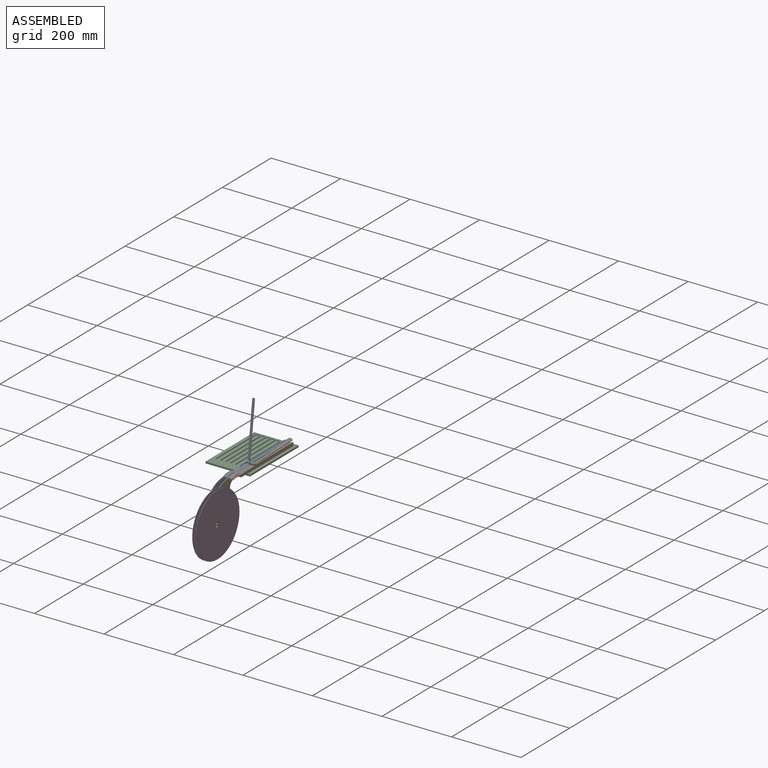
[diagram: assembled view]
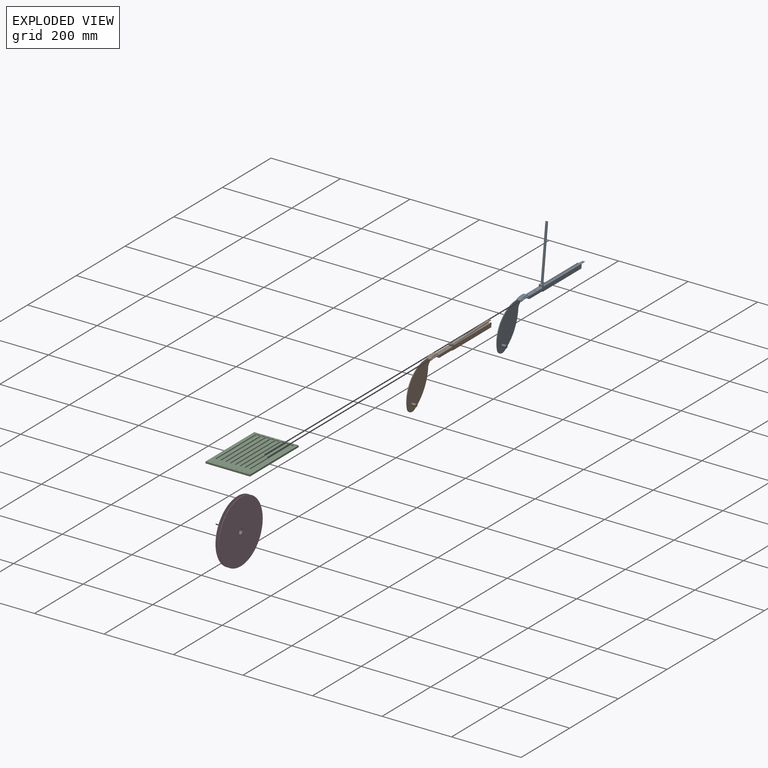
[diagram: exploded view]
GUIDED TOUR — MATED ASSEMBLY WITH SUBASSEMBLIES (Onshape document 09670830aaa709a325eec93c, AutoMate assembly 09670830aaa709a325eec93c_676e1ab209dbd482c11b53d5_d669f3113998ab0a5254547f_default)

This assembly has 26 component occurrences arranged in 4 top-level units: 2 individual components plus 2 subassemblies (S0, S1). The tour has two levels: first the top level, where each subassembly is treated as one rigid unit; then each subassembly is toured internally in its own section (nesting deeper than one subassembly level is flattened into its subassembly's section).

Components are labeled P0..P25 across the whole record; subassembly units are labeled S0..S1. A mate is a constraint between two units; its type names the relative motion it leaves free:
  FASTENED — locks the two components together rigidly (no relative motion),
  PLANAR — leaves sliding in the plane through the listed point (normal = the listed direction) and rotation about that normal free,
  REVOLUTE — leaves rotation about the listed axis free (a hinge).
Axis/direction vectors are unit vectors and 'through' points are millimeter coordinates, both in the assembly's world frame.

TOP-LEVEL MATES (between units; each subassembly's internal mates are listed in its own section)
  1. PLANAR "Planar 2": S1 <-> P3, direction (0.000, 1.000, 0.000) through (-10.76, 190.00, 11.09) mm
  2. PLANAR "Planar 7": S0 <-> P3, direction (0.000, 1.000, 0.000) through (-24.76, 190.00, 11.09) mm
  3. PLANAR "Planar 3": S1 <-> P3, direction (1.000, 0.000, 0.000) through (-8.10, 190.00, 3.00) mm
  4. PLANAR "Planar 6": S0 <-> P3, direction (1.000, 0.000, 0.000) through (-22.10, 30.00, 13.50) mm
  5. REVOLUTE "Revolute 1": S1 <-> P18, axis (1.000, 0.000, 0.000) through (-19.20, -120.00, -81.90) mm

TOP-LEVEL ASSEMBLY ORDER
  1. P3 — the base component [order verified]
  2. S0 [order verified]
  3. S1 [order verified]
  4. P18 [order verified]
Order-tag legend:
  [order verified] — this step's position reverses a verified removal order: the component was checked to insert without passing through the ones already placed.

Of the 26 component occurrences, 5 carry the full construction recipe — the FeatureScript program that regenerates the part's solid from scratch; the rest are supplied as boundary geometry only. Each toured unit is shown spotlighted twice — assembled, then exploded with a leader line back to its socket (green = recipe-attached component, orange = geometry-only, blue = subassembly unit; the rest desaturated gray).
NOTE — this tour is split across 3 documents so each fits a 32k-token context. This is document 1: the component sections continue in the remaining 2 documents, each repeating the header above.
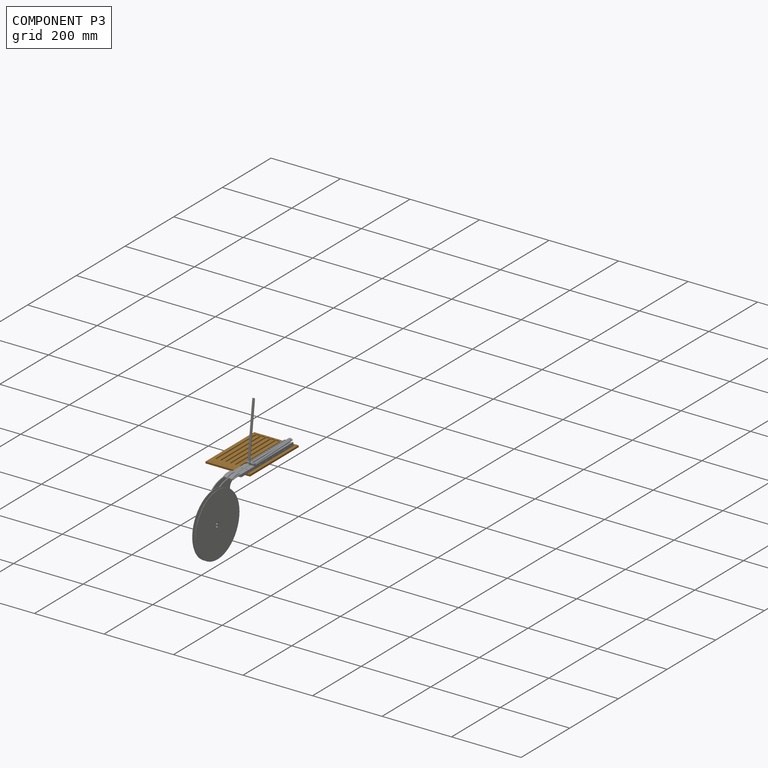
[diagram: component P3 — assembled]
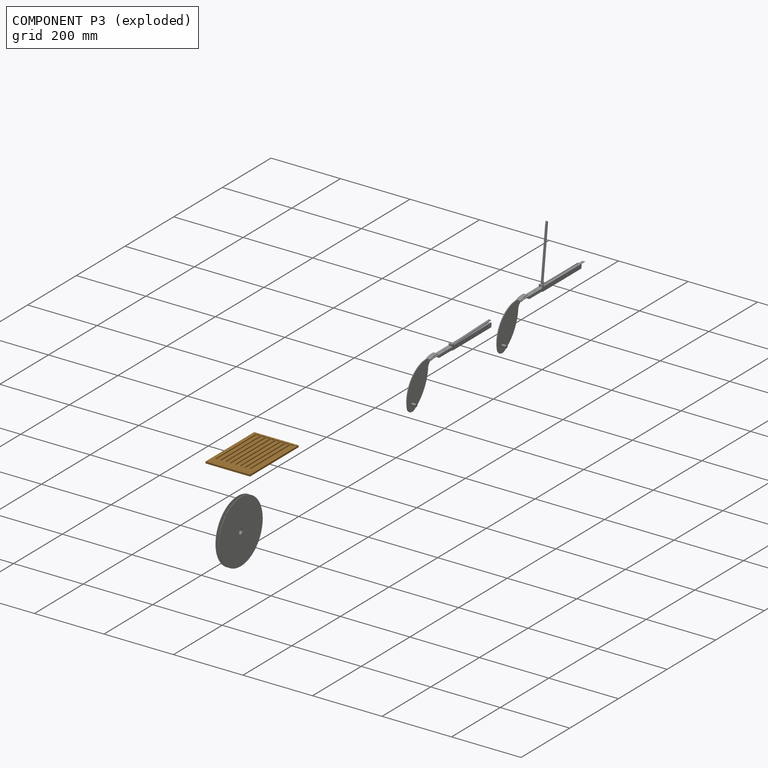
[diagram: component P3 — exploded]
COMPONENT P3 — geometry summary (no construction recipe available for this part):
  bounding box: 200.0 x 128.0 x 5.0 mm
  B-rep topology: 1 solid, 90 faces, 484 edges
  volume: 78361 mm^3 (61% of its bounding box)
Held by: PLANAR mate "Planar 2" to P1; PLANAR mate "Planar 7" to P0; PLANAR mate "Planar 3" to P1; PLANAR mate "Planar 6" to P0.
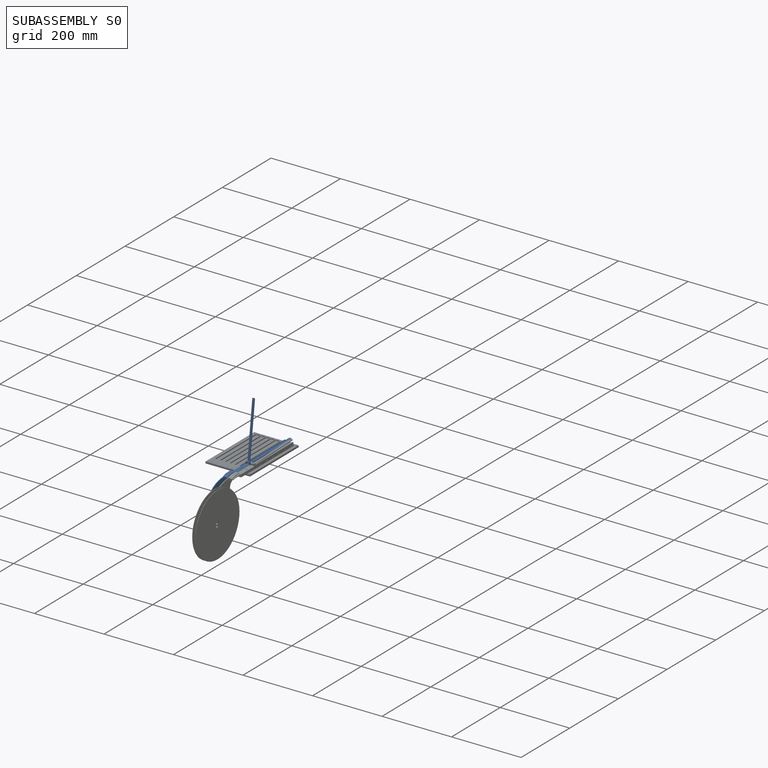
[diagram: subassembly S0 — assembled]
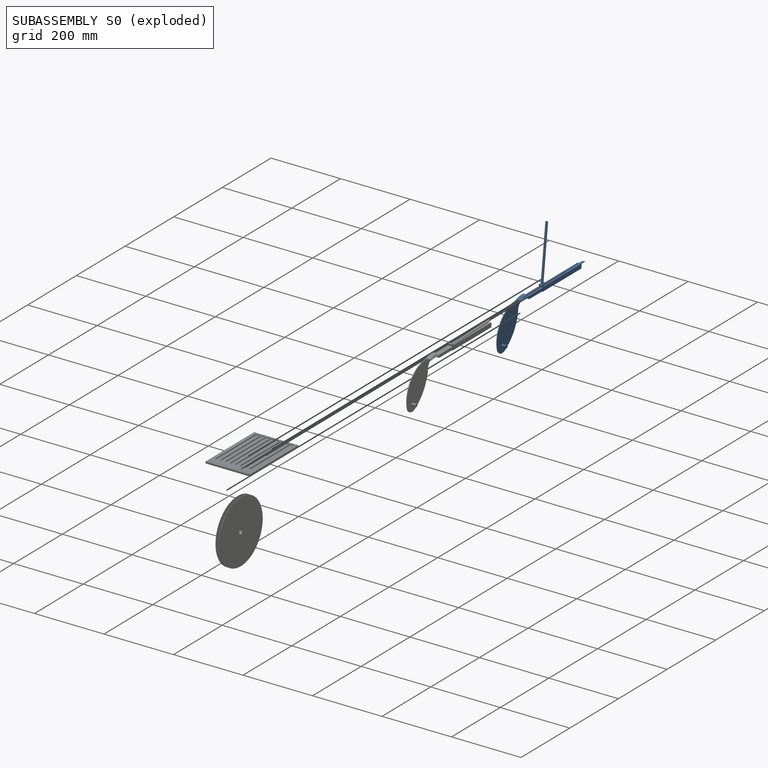
[diagram: subassembly S0 — exploded]
SUBASSEMBLY S0 — 12 components (P0, P2, P5, P7, P9, P12, P14, P15, P20, P21, P22, P23), of which 2 recipe-attached; toured below.
Held by: PLANAR mate "Planar 7" to P3; PLANAR mate "Planar 6" to P3.
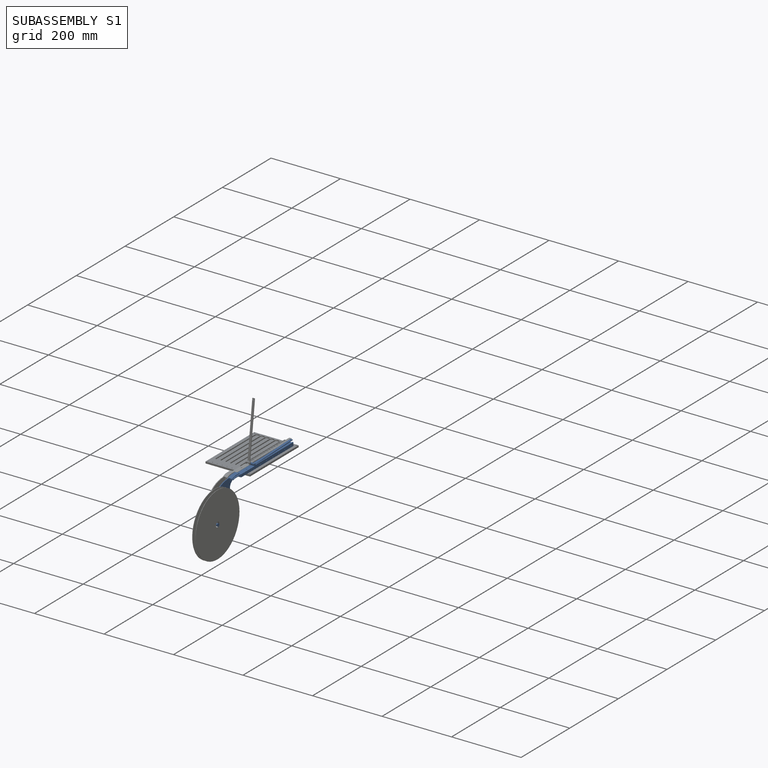
[diagram: subassembly S1 — assembled]
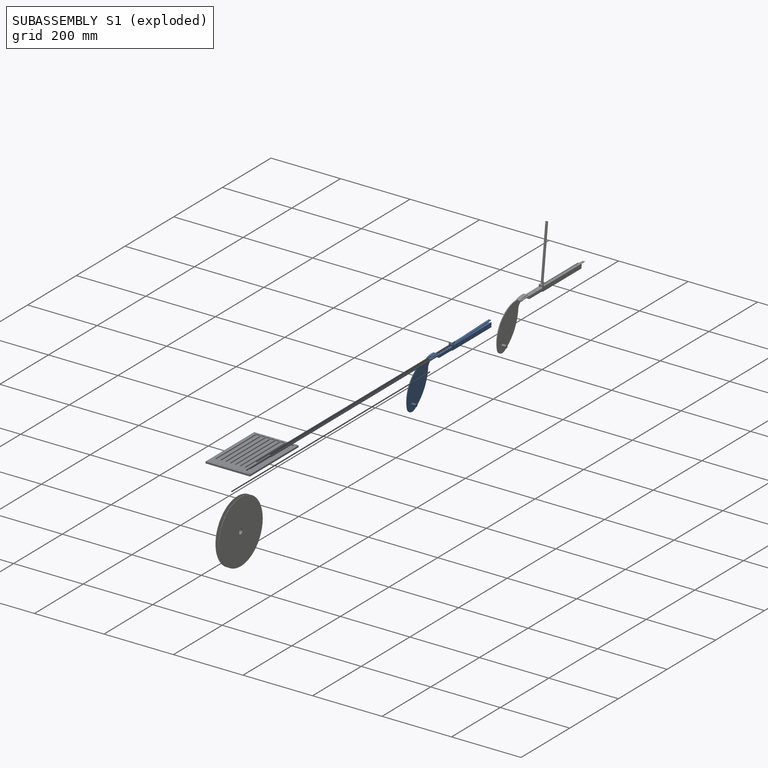
[diagram: subassembly S1 — exploded]
SUBASSEMBLY S1 — 12 components (P1, P4, P6, P8, P10, P11, P13, P16, P17, P19, P24, P25), of which 2 recipe-attached; toured below.
Held by: PLANAR mate "Planar 2" to P3; PLANAR mate "Planar 3" to P3; REVOLUTE mate "Revolute 1" to P18.
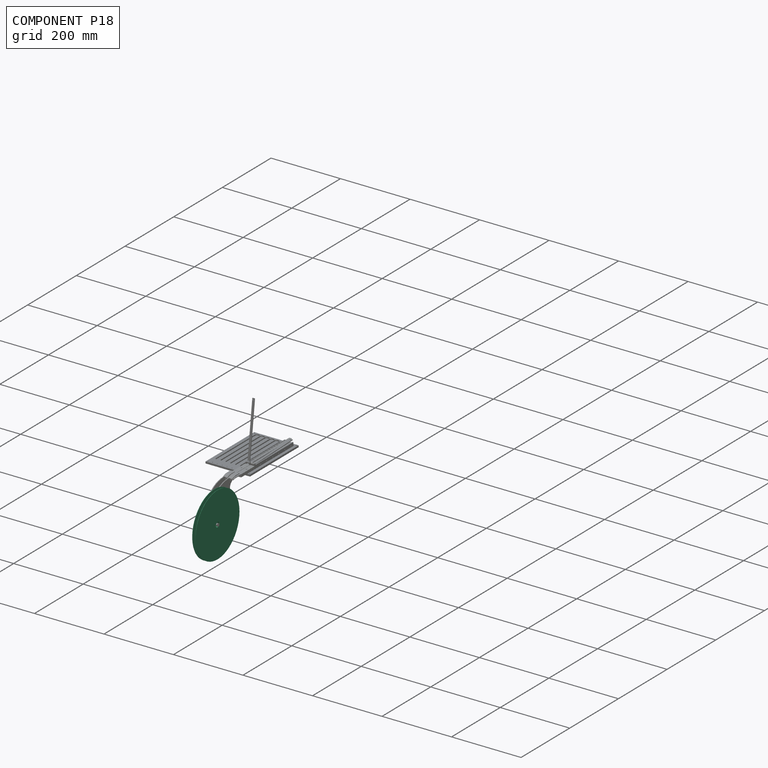
[diagram: component P18 — assembled]
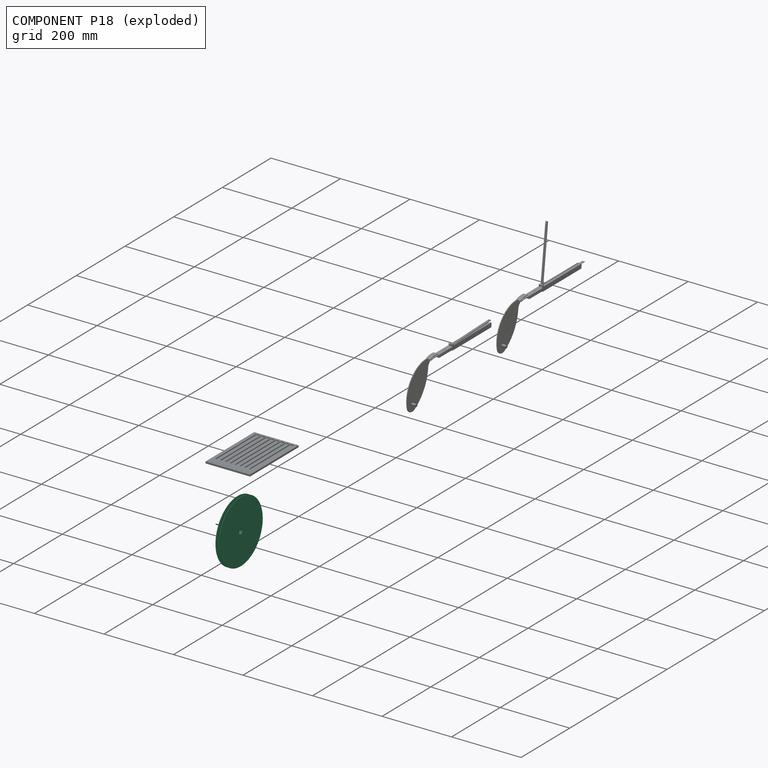
[diagram: component P18 — exploded]
COMPONENT P18 — recipe-attached (CADFS 00429432, mesh-verified: the recipe's output STEP matches this component's geometry to below the mesh-comparison resolution (tessellation chordal tolerance ~0.382 mm)).
Held by: REVOLUTE mate "Revolute 1" to P1.
Construction recipe (FeatureScript — the CAD program that rebuilds this solid; sketch coordinates are in the units given by the * unit suffixes, e.g. mm):

FeatureScript 1511;
import(path : "onshape/std/geometry.fs", version : "1511.0");
import(path : "onshape/std/common.fs", version : "1511.0");
const mm = millimeter;
const VERTEX = EntityType.VERTEX;
const EDGE = EntityType.EDGE;
const FACE = EntityType.FACE;
const BODY = EntityType.BODY;
function v(x, y){return vector(x, y);}
function OD(order){return orderDisambiguation(order);}
function OSD(set){return originalSetDisambiguation(set);}
function TD(topology){return topologyDisambiguation(topology);}
function TDD(query){return trueDependencyDisambiguation(query);}
function sQuery(a, b, c) {return sketchEntityQuery(a, b, c);}

annotation { "Feature Type Name" : "Feature", "Feature Type Description" : "" }
export const myFeature = defineFeature(function(context is Context, id is Id, definition is map)
    precondition{}
    {
        {
            var Q0;
            Q0=qCreatedBy(makeId("Right.planeOp"),FACE);
            var sketch = newSketch(context, id + "F0", { "sketchPlane" : qUnion([Q0])});
            skCircle(sketch, "E0", {"center": v(0, 0) * mm, "radius": 90 * mm});
            skCircle(sketch, "E1", {"center": v(0, 0) * mm, "radius": 7 * mm});
            skSolve(sketch);
        }
        {
            var Q0;
            Q0=makeQuery(id+"F0.imprint","IMPRINT",FACE,{"disambiguationData":[TD([[makeQuery(id+"F0.imprint","IMPRINT",EDGE,{"derivedFrom":sQuery(id+"F0.wireOp",EDGE,"E0")}),1.0]])]});
            extrude(context, id + "F1", {"entities" : qUnion([Q0]), "depth" : 1 * mm});
        }
        {
            var Q0;
            Q0=makeQuery(id+"F1.opExtrude","CAP_FACE",FACE,{"disambiguationData":[OSD([sQuery(id+"F0.wireOp",EDGE,"E0"),sQuery(id+"F0.wireOp",EDGE,"E1")])],"isStart":false});
            var sketch = newSketch(context, id + "F2", { "sketchPlane" : qUnion([Q0])});
            skCircle(sketch, "E2.0", {"center": v(0, 0) * mm, "radius": 7 * mm});
            skCircle(sketch, "E3", {"center": v(0, 0) * mm, "radius": 8 * mm});
            skSolve(sketch);
        }
        {
            var Q0;
            Q0=makeQuery(id+"F2.imprint","IMPRINT",FACE,{"disambiguationData":[TD([[makeQuery(id+"F2.imprint","IMPRINT",EDGE,{"derivedFrom":sQuery(id+"F2.wireOp",EDGE,"E2.0")}),-1.0]])]});
            extrude(context, id + "F3", {"entities" : qUnion([Q0]), "operationType" : NewBodyOperationType.ADD, "depth" : 8 * mm});
        }
        {
            var Q0;
            Q0=makeQuery(id+"F3.opExtrude","CAP_FACE",FACE,{"disambiguationData":[OSD([sQuery(id+"F2.wireOp",EDGE,"E2.0"),sQuery(id+"F2.wireOp",EDGE,"E3")])],"isStart":false});
            var sketch = newSketch(context, id + "F4", { "sketchPlane" : qUnion([Q0])});
            skCircle(sketch, "E4.0.0", {"center": v(0, 0) * mm, "radius": 90 * mm});
            skSolve(sketch);
        }
        {
            var Q0;
            Q0=makeQuery(id+"F4.imprint","IMPRINT",FACE,{"disambiguationData":[TD([[makeQuery(id+"F4.imprint","IMPRINT",EDGE,{"derivedFrom":sQuery(id+"F4.wireOp",EDGE,"E4.0.0")}),1.0]])]});
            var Q1;
            Q1=makeQuery(id+"F4.imprint","IMPRINT",FACE,{"disambiguationData":[TD([[makeQuery(id+"F4.imprint","IMPRINT",EDGE,{"derivedFrom":makeQuery(id+"F3.opExtrude","CAP_EDGE",EDGE,{"disambiguationData":[OSD([sQuery(id+"F2.wireOp",EDGE,"E2.0")])],"isStart":false})}),-1.0]])]});
            extrude(context, id + "F5", {"entities" : qUnion([Q0, Q1]), "operationType" : NewBodyOperationType.ADD, "depth" : 1 * mm});
        }
    });
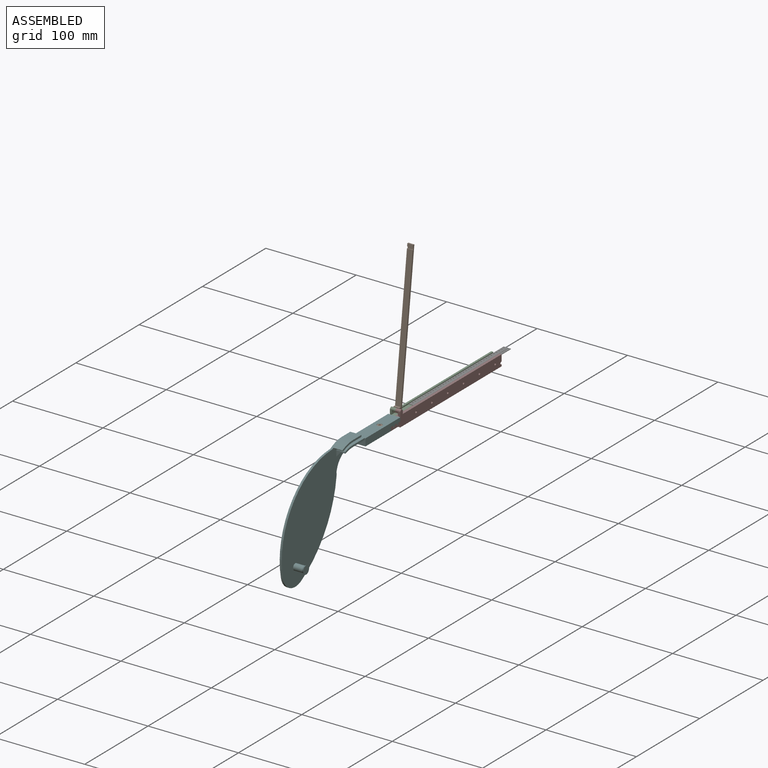
[diagram: subassembly S0 — assembled view]
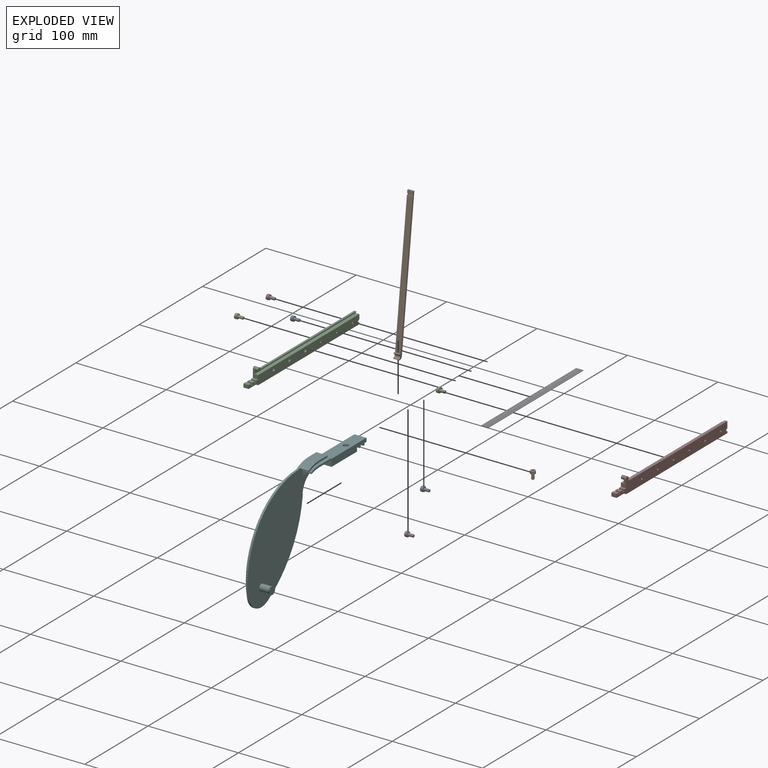
[diagram: subassembly S0 — exploded view]
SUBASSEMBLY S0 TOUR — 12 components, shown here in isolation at its own camera.

INTERNAL MATES
  1. FASTENED "Fastened 4": P5 <-> P20, direction (-1.000, 0.000, 0.000) through (-30.60, 80.00, 9.00) mm
  2. REVOLUTE "Revolute 1": P21 <-> P15, axis (1.000, 0.000, 0.000) through (-24.85, 32.00, 18.00) mm
  3. FASTENED "Fastened 3": P5 <-> P22, direction (-1.000, 0.000, 0.000) through (-30.60, 105.00, 9.00) mm
  4. REVOLUTE "Revolute 2": P5 <-> P9, axis (-1.000, 0.000, 0.000) through (-30.60, 130.00, 9.00) mm
  5. PLANAR "Planar 2": P14 <-> P5, direction (-1.000, 0.000, 0.000) through (-31.85, 132.18, 13.35) mm
  6. PLANAR "Planar 1": P15 <-> P14, direction (0.000, 0.000, 1.000) through (-25.80, 110.00, 13.10) mm
  7. FASTENED "Fastened 1": P5 <-> P15, direction (1.000, 0.000, 0.000) through (-27.85, 55.00, 9.00) mm
  8. FASTENED "Fastened 5": P5 <-> P23, direction (-1.000, 0.000, 0.000) through (-30.60, 55.00, 9.00) mm
  9. REVOLUTE "Revolute 4": P7 <-> P5, axis (1.000, 0.000, 0.000) through (-30.60, 180.00, 9.00) mm
  10. PLANAR "Planar 3": P12 <-> P15, direction (1.000, 0.000, 0.000) through (-22.10, 25.00, 9.00) mm
  11. REVOLUTE "Revolute 3": P0 <-> P5, axis (1.000, 0.000, 0.000) through (-30.60, 155.00, 9.00) mm
  12. FASTENED "Fastened 3": P5 <-> P22, direction (-1.000, 0.000, 0.000) through (-30.60, 105.00, 9.00) mm
  13. REVOLUTE "Revolute 1": P21 <-> P15, axis (1.000, 0.000, 0.000) through (-24.85, 32.00, 18.00) mm
  14. PLANAR "Planar 8": P5 <-> P12, direction (0.000, -1.000, 0.000) through (-29.90, 30.00, 13.10) mm
  15. REVOLUTE "Revolute 3": P0 <-> P5, axis (1.000, 0.000, 0.000) through (-30.60, 155.00, 9.00) mm
  16. PLANAR "Planar 1": P15 <-> P14, direction (0.000, 0.000, 1.000) through (-25.80, 110.00, 13.10) mm
  17. REVOLUTE "Revolute 4": P7 <-> P5, axis (1.000, 0.000, 0.000) through (-30.60, 180.00, 9.00) mm
  18. FASTENED "Fastened 4": P5 <-> P20, direction (-1.000, 0.000, 0.000) through (-30.60, 80.00, 9.00) mm
  19. FASTENED "Fastened 5": P5 <-> P23, direction (-1.000, 0.000, 0.000) through (-30.60, 55.00, 9.00) mm
  20. PLANAR "Planar 2": P14 <-> P5, direction (-1.000, 0.000, 0.000) through (-31.85, 132.18, 13.35) mm
  21. REVOLUTE "Revolute 2": P5 <-> P9, axis (-1.000, 0.000, 0.000) through (-30.60, 130.00, 9.00) mm
  22. PLANAR "Planar 3": P12 <-> P15, direction (1.000, 0.000, 0.000) through (-22.10, 25.00, 9.00) mm
  23. FASTENED "Fastened 1": P5 <-> P15, direction (1.000, 0.000, 0.000) through (-27.85, 55.00, 9.00) mm

ASSEMBLY ORDER (within the subassembly)
  1. P22 — the base component [order verified]
  2. P12 [order verified]
  3. P9 [order verified]
  4. P0 [order verified]
  5. P7 [order verified]
  6. P5 [order verified]
  7. P14 [order verified]
  8. P21 [order verified]
  9. P15 [order verified]
  10. P23 [order verified]
  11. P20 [order verified]
  12. P2 [order verified]
(P5, P15, P21 verified with a relaxed clearance tolerance: the source model stores slight part interference there.)
Order-tag legend:
  [order verified] — this step's position reverses a verified removal order: the component was checked to insert without passing through the ones already placed.
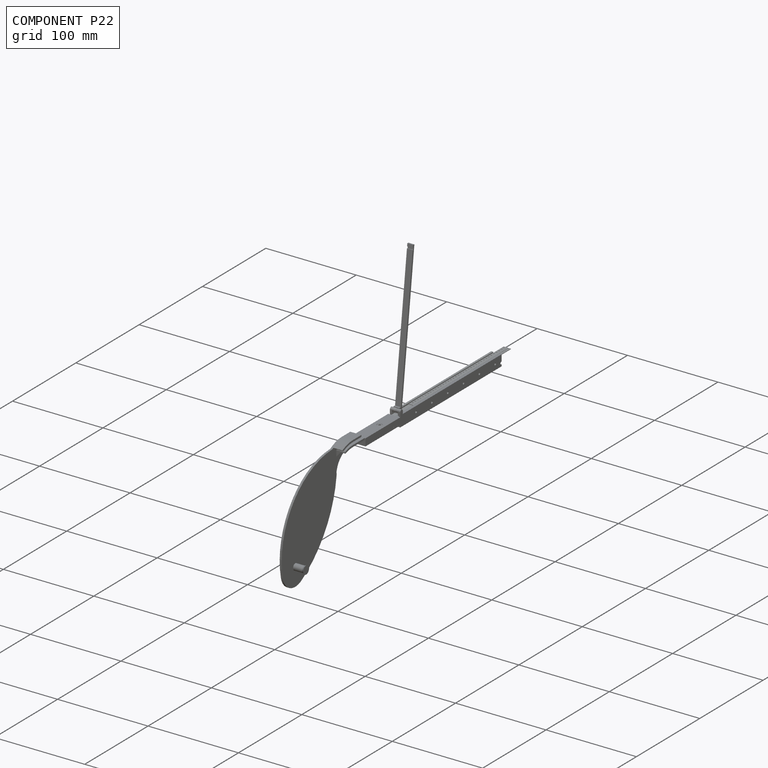
[diagram: component P22 — assembled]
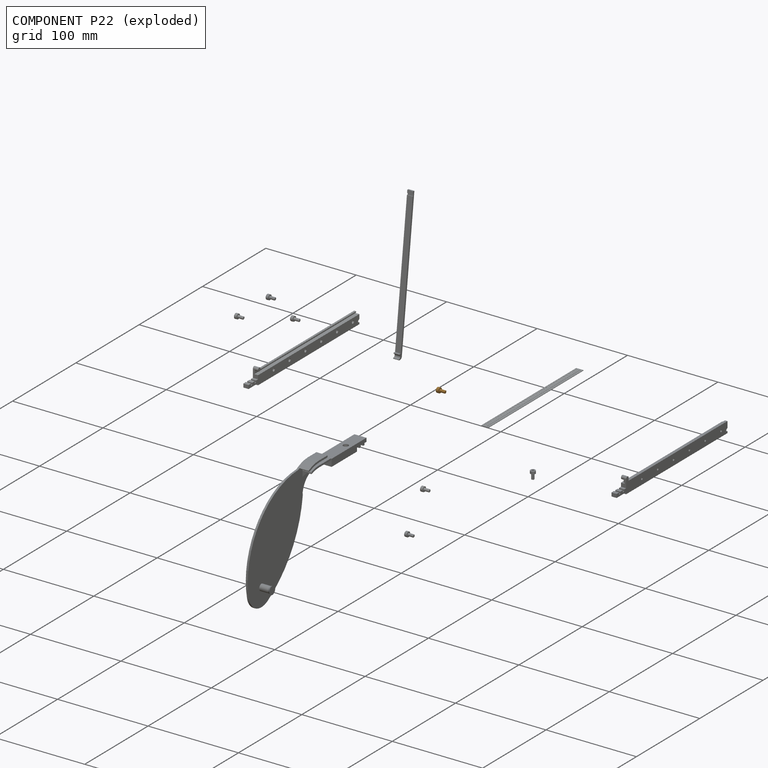
[diagram: component P22 — exploded]
COMPONENT P22 — geometry summary (no construction recipe available for this part):
  bounding box: 9.0 x 6.0 x 6.0 mm
  B-rep topology: 1 solid, 18 faces, 75 edges
  volume: 104 mm^3 (33% of its bounding box)
  symmetry: 6-fold rotationally symmetric about the z axis; mirror-symmetric across its x mid-plane, y mid-plane
Held by: FASTENED mate "Fastened 3" to P5; FASTENED mate "Fastened 3" to P5.
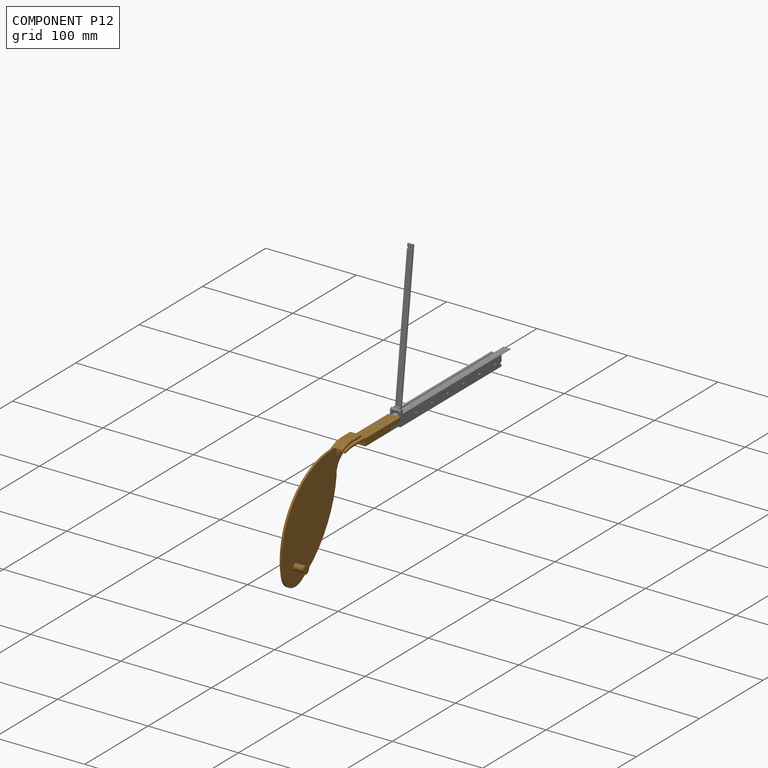
[diagram: component P12 — assembled]
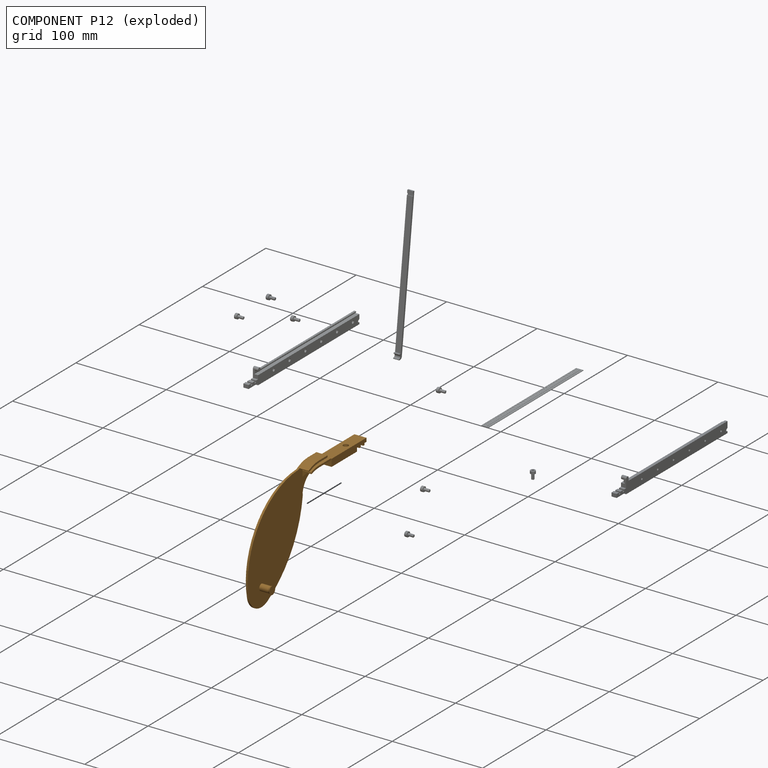
[diagram: component P12 — exploded]
COMPONENT P12 — geometry summary (no construction recipe available for this part):
  bounding box: 171.5 x 120.1 x 14.2 mm
  B-rep topology: 1 solid, 48 faces, 264 edges
  volume: 23029 mm^3 (8% of its bounding box)
Held by: PLANAR mate "Planar 3" to P15; PLANAR mate "Planar 8" to P5; PLANAR mate "Planar 3" to P15.
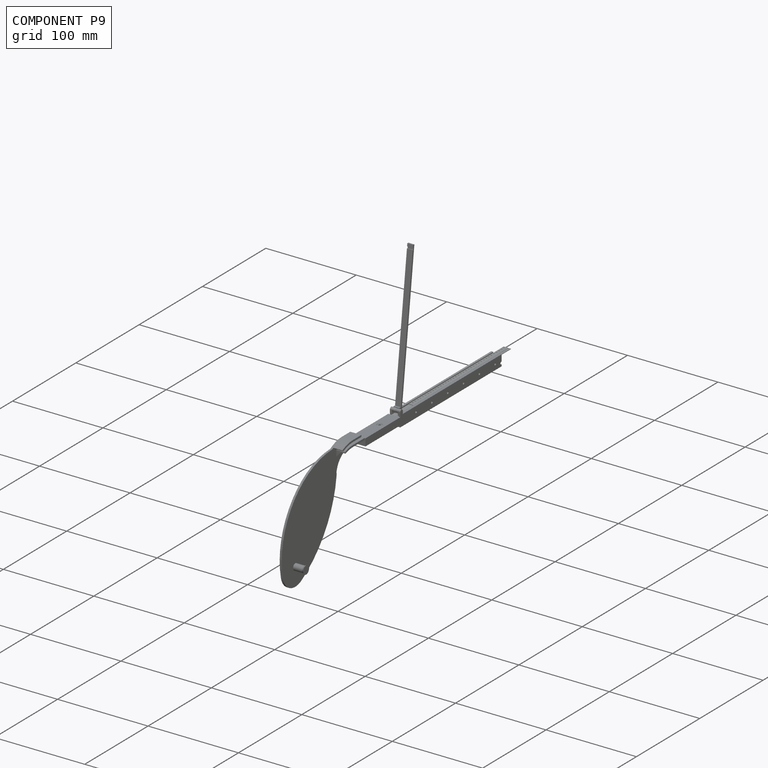
[diagram: component P9 — assembled]
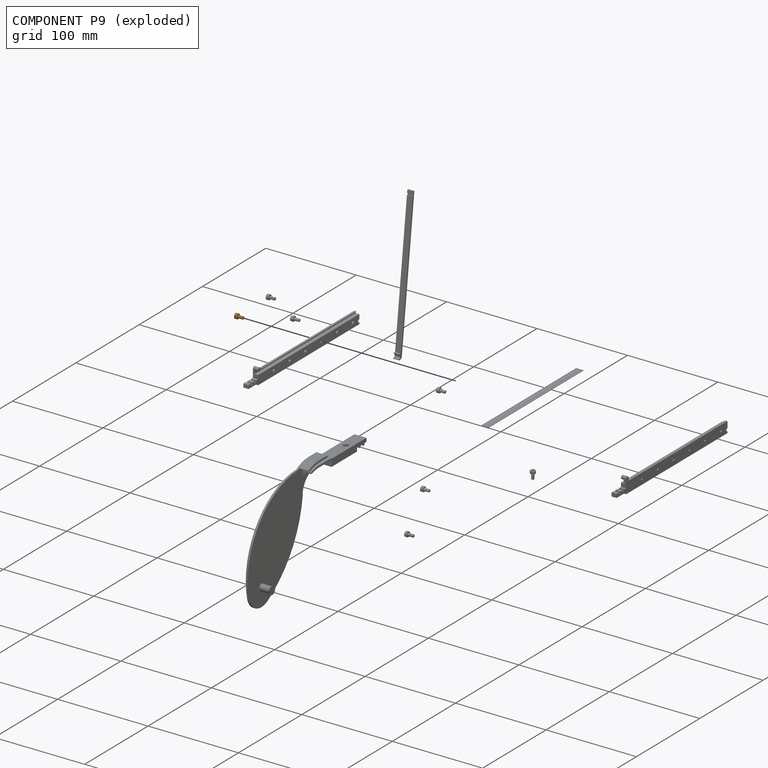
[diagram: component P9 — exploded]
COMPONENT P9 — geometry summary (no construction recipe available for this part):
  bounding box: 9.0 x 6.0 x 6.0 mm
  B-rep topology: 1 solid, 18 faces, 75 edges
  volume: 104 mm^3 (33% of its bounding box)
  symmetry: 6-fold rotationally symmetric about the z axis; mirror-symmetric across its x mid-plane, y mid-plane
Held by: REVOLUTE mate "Revolute 2" to P5; REVOLUTE mate "Revolute 2" to P5.
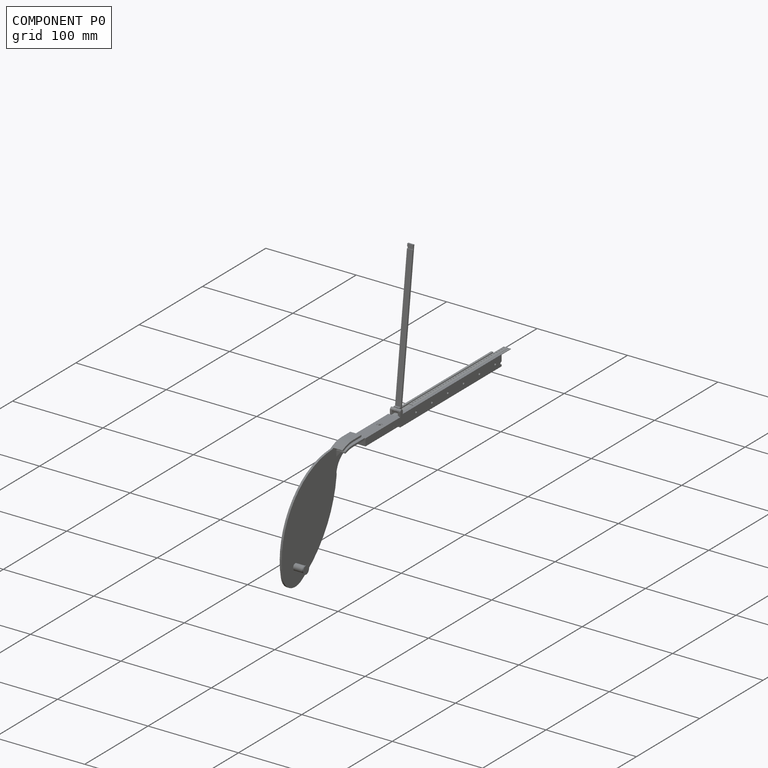
[diagram: component P0 — assembled]
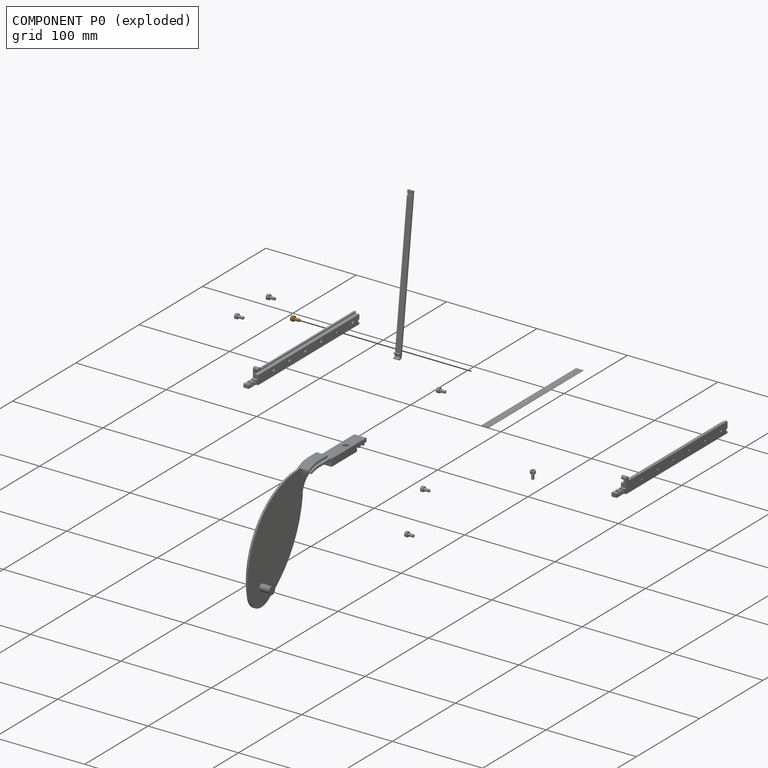
[diagram: component P0 — exploded]
COMPONENT P0 — geometry summary (no construction recipe available for this part):
  bounding box: 9.0 x 6.0 x 6.0 mm
  B-rep topology: 1 solid, 18 faces, 75 edges
  volume: 104 mm^3 (33% of its bounding box)
  symmetry: 6-fold rotationally symmetric about the z axis; mirror-symmetric across its x mid-plane, y mid-plane
Held by: REVOLUTE mate "Revolute 3" to P5; REVOLUTE mate "Revolute 3" to P5.
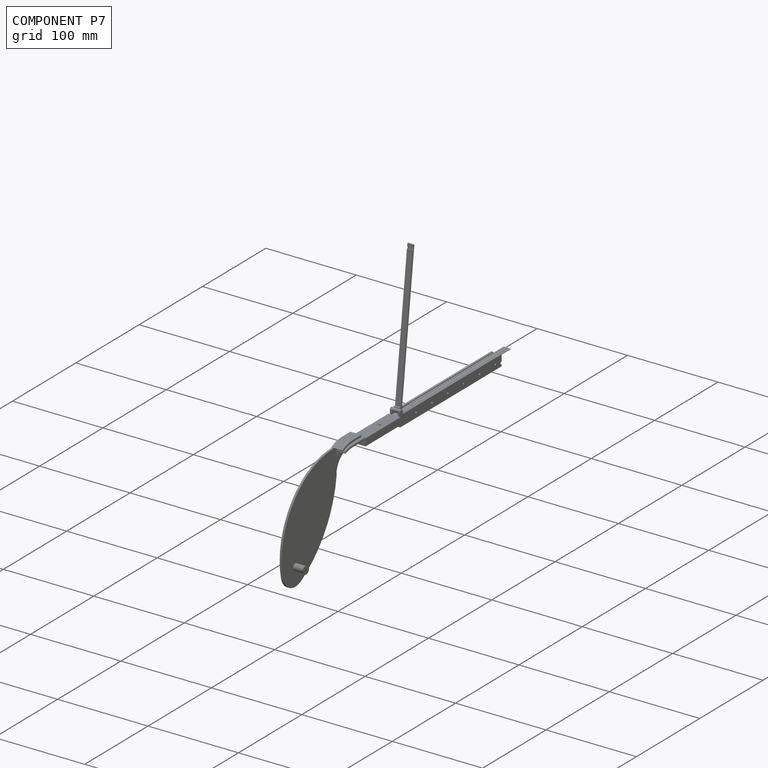
[diagram: component P7 — assembled]
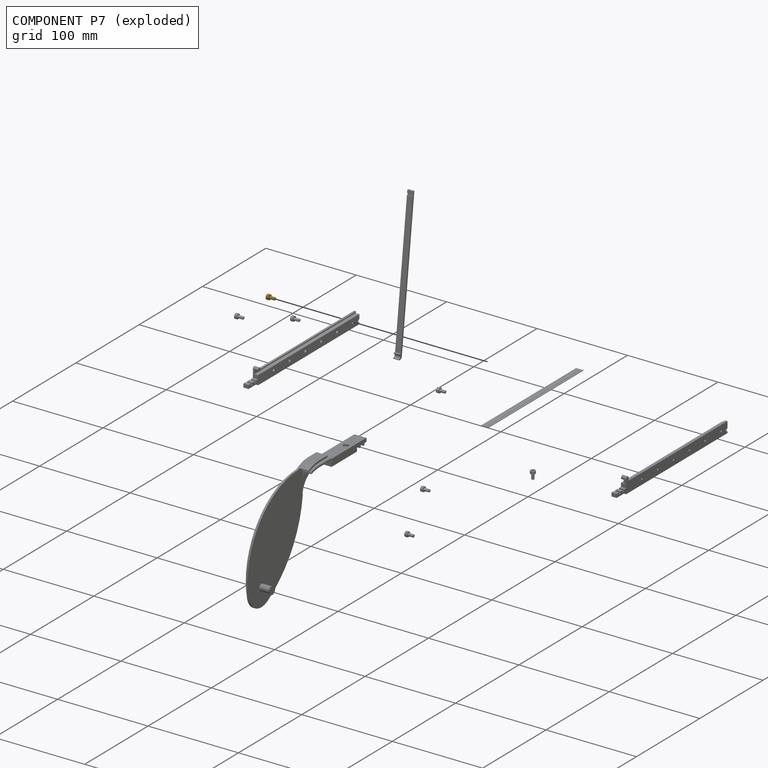
[diagram: component P7 — exploded]
COMPONENT P7 — geometry summary (no construction recipe available for this part):
  bounding box: 9.0 x 6.0 x 6.0 mm
  B-rep topology: 1 solid, 18 faces, 75 edges
  volume: 104 mm^3 (33% of its bounding box)
  symmetry: 6-fold rotationally symmetric about the z axis; mirror-symmetric across its x mid-plane, y mid-plane
Held by: REVOLUTE mate "Revolute 4" to P5; REVOLUTE mate "Revolute 4" to P5.
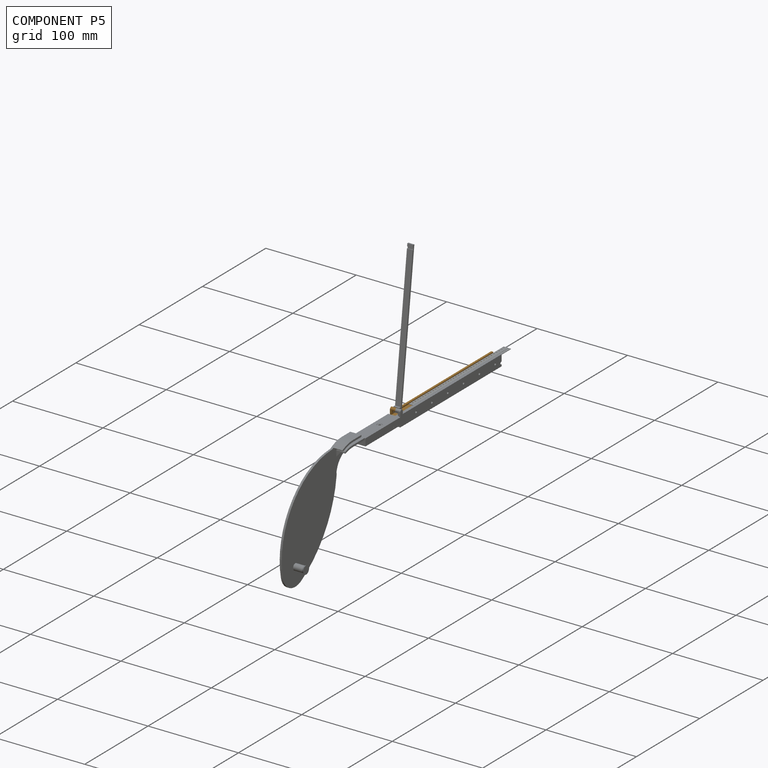
[diagram: component P5 — assembled]
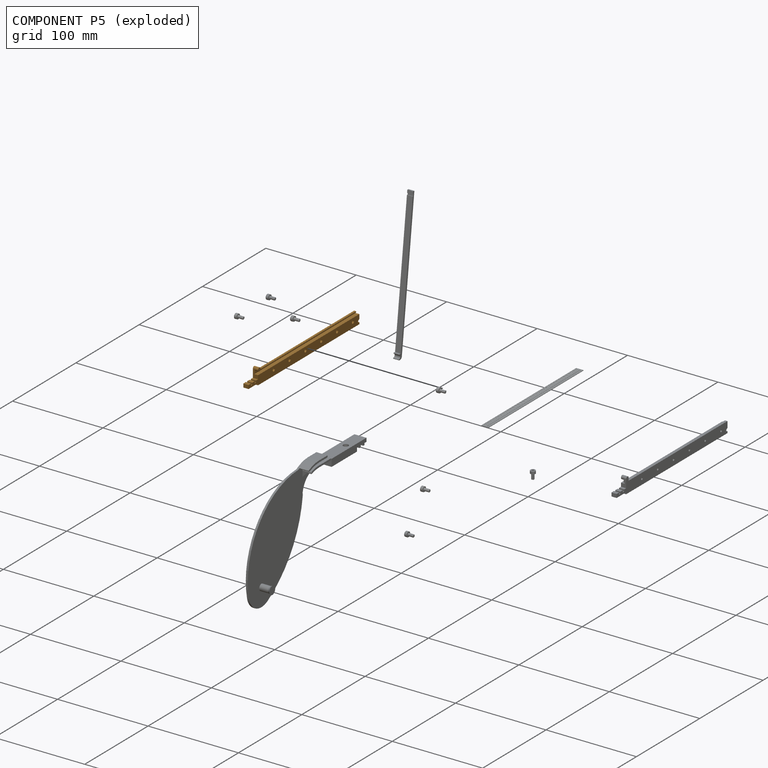
[diagram: component P5 — exploded]
COMPONENT P5 — geometry summary (no construction recipe available for this part):
  bounding box: 175.0 x 17.0 x 5.8 mm
  B-rep topology: 1 solid, 47 faces, 246 edges
  volume: 9630 mm^3 (56% of its bounding box)
Held by: FASTENED mate "Fastened 4" to P20; FASTENED mate "Fastened 3" to P22; REVOLUTE mate "Revolute 2" to P9; PLANAR mate "Planar 2" to P14; FASTENED mate "Fastened 1" to P15; FASTENED mate "Fastened 5" to P23; REVOLUTE mate "Revolute 4" to P7; REVOLUTE mate "Revolute 3" to P0; FASTENED mate "Fastened 3" to P22; PLANAR mate "Planar 8" to P12; REVOLUTE mate "Revolute 3" to P0; REVOLUTE mate "Revolute 4" to P7; FASTENED mate "Fastened 4" to P20; FASTENED mate "Fastened 5" to P23; PLANAR mate "Planar 2" to P14; REVOLUTE mate "Revolute 2" to P9; FASTENED mate "Fastened 1" to P15.
